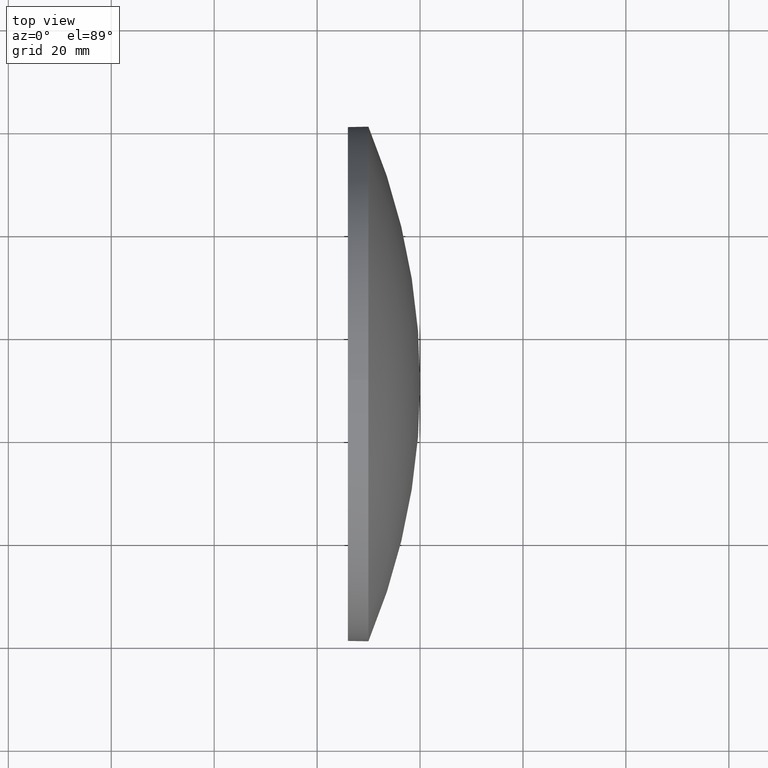
[diagram: clean part render]
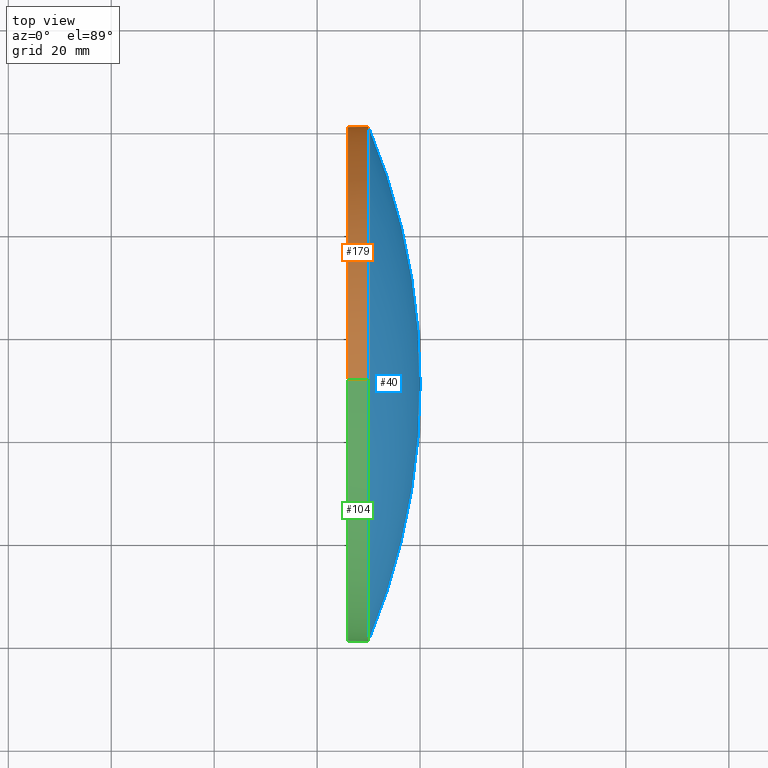
[diagram: same view with three faces highlighted in distinct colors, each labeled with its STEP entity id]
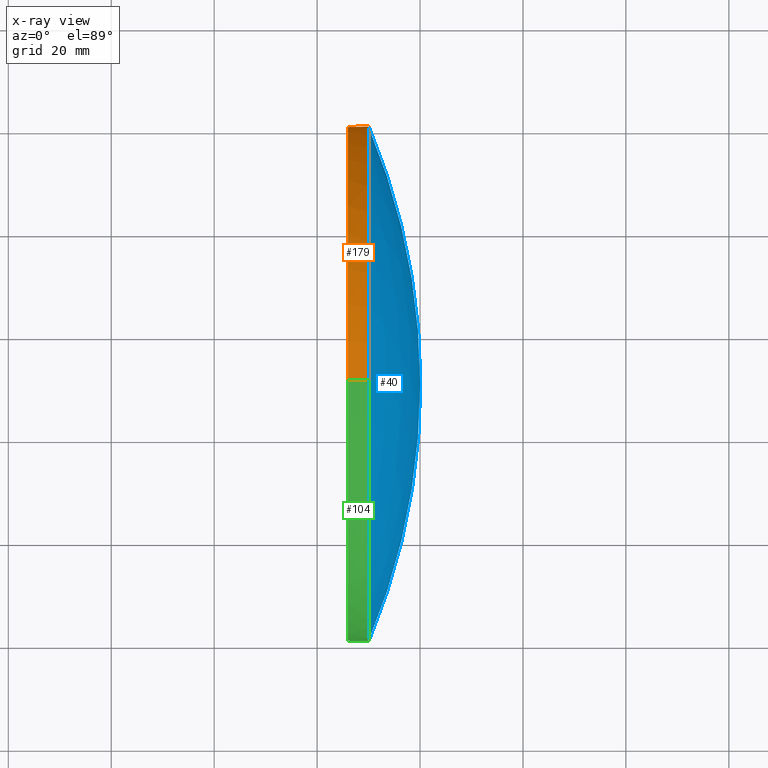
[diagram: x-ray of the same camera — body ghosted, the three highlighted faces saturated]
A machine part, top view with three faces highlighted in distinct colors.
The next image is the same camera in x-ray (body ghosted, the three faces saturated) — at least one of them is partly hidden behind the body in this view.
Their STEP definitions:

[orange] entity #179 — the highlighted cylindrical surface (partial cylindrical patch) has radius 50 mm, axis along (-1, -0, -0).
#4 = DIRECTION ( 'NONE',  ( -1.000000000000000000, -0.0000000000000000000, -0.0000000000000000000 ) ) ;
#6 = CARTESIAN_POINT ( 'NONE',  ( 229.9713472661685500, 130.4671098528244200, -50.00000000000001400 ) ) ;
#8 = ORIENTED_EDGE ( 'NONE', *, *, #70, .T. ) ;
#10 = ORIENTED_EDGE ( 'NONE', *, *, #143, .F. ) ;
#18 = DIRECTION ( 'NONE',  ( 0.0000000000000000000, 0.0000000000000000000, 1.000000000000000000 ) ) ;
#20 = CARTESIAN_POINT ( 'NONE',  ( 217.9945825323866300, 130.4671098528244200, 0.0000000000000000000 ) ) ;
#21 = EDGE_CURVE ( 'NONE', #167, #56, #175, .T. ) ;
#26 = CIRCLE ( 'NONE', #75, 50.00000000000001400 ) ;
#27 = VERTEX_POINT ( 'NONE', #6 ) ;
#28 = CARTESIAN_POINT ( 'NONE',  ( 225.9713472661685500, 130.4671098528244200, 50.00000000000001400 ) ) ;
#30 = DIRECTION ( 'NONE',  ( -1.000000000000000000, -0.0000000000000000000, -0.0000000000000000000 ) ) ;
#31 = CIRCLE ( 'NONE', #135, 50.00000000000001400 ) ;
#33 = DIRECTION ( 'NONE',  ( -1.000000000000000000, -0.0000000000000000000, -0.0000000000000000000 ) ) ;
#35 = AXIS2_PLACEMENT_3D ( 'NONE', #20, #111, #184 ) ;
#36 = VERTEX_POINT ( 'NONE', #43 ) ;
#43 = CARTESIAN_POINT ( 'NONE',  ( 229.9713472661685200, 180.4671098528244500, 0.0000000000000000000 ) ) ;
#48 = ORIENTED_EDGE ( 'NONE', *, *, #114, .T. ) ;
#52 = LINE ( 'NONE', #88, #170 ) ;
#56 = VERTEX_POINT ( 'NONE', #28 ) ;
#58 = FACE_OUTER_BOUND ( 'NONE', #134, .T. ) ;
#61 = CARTESIAN_POINT ( 'NONE',  ( 229.9713472661685500, 130.4671098528244200, 0.0000000000000000000 ) ) ;
#63 = ORIENTED_EDGE ( 'NONE', *, *, #21, .F. ) ;
#68 = AXIS2_PLACEMENT_3D ( 'NONE', #77, #92, #120 ) ;
#70 = EDGE_CURVE ( 'NONE', #27, #74, #52, .T. ) ;
#74 = VERTEX_POINT ( 'NONE', #148 ) ;
#75 = AXIS2_PLACEMENT_3D ( 'NONE', #93, #4, #123 ) ;
#77 = CARTESIAN_POINT ( 'NONE',  ( 229.9713472661685500, 130.4671098528244200, 0.0000000000000000000 ) ) ;
#88 = CARTESIAN_POINT ( 'NONE',  ( 217.9945825323866300, 130.4671098528244200, -50.00000000000001400 ) ) ;
#92 = DIRECTION ( 'NONE',  ( -1.000000000000000000, -0.0000000000000000000, -0.0000000000000000000 ) ) ;
#93 = CARTESIAN_POINT ( 'NONE',  ( 225.9713472661685500, 130.4671098528244200, 0.0000000000000000000 ) ) ;
#99 = CYLINDRICAL_SURFACE ( 'NONE', #35, 50.00000000000001400 ) ;
#111 = DIRECTION ( 'NONE',  ( -1.000000000000000000, -0.0000000000000000000, -0.0000000000000000000 ) ) ;
#114 = EDGE_CURVE ( 'NONE', #167, #36, #127, .T. ) ;
#119 = DIRECTION ( 'NONE',  ( -1.000000000000000000, -0.0000000000000000000, -0.0000000000000000000 ) ) ;
#120 = DIRECTION ( 'NONE',  ( 0.0000000000000000000, 0.0000000000000000000, 1.000000000000000000 ) ) ;
#123 = DIRECTION ( 'NONE',  ( 0.0000000000000000000, 0.0000000000000000000, 1.000000000000000000 ) ) ;
#127 = CIRCLE ( 'NONE', #68, 50.00000000000001400 ) ;
#131 = EDGE_CURVE ( 'NONE', #36, #27, #31, .T. ) ;
#134 = EDGE_LOOP ( 'NONE', ( #171, #8, #10, #63, #48 ) ) ;
#135 = AXIS2_PLACEMENT_3D ( 'NONE', #61, #33, #18 ) ;
#143 = EDGE_CURVE ( 'NONE', #56, #74, #26, .T. ) ;
#147 = VECTOR ( 'NONE', #30, 1000.000000000000000 ) ;
#148 = CARTESIAN_POINT ( 'NONE',  ( 225.9713472661685500, 130.4671098528244200, -50.00000000000001400 ) ) ;
#156 = CARTESIAN_POINT ( 'NONE',  ( 229.9713472661685500, 130.4671098528244200, 50.00000000000001400 ) ) ;
#166 = CARTESIAN_POINT ( 'NONE',  ( 217.9945825323866300, 130.4671098528244200, 50.00000000000001400 ) ) ;
#167 = VERTEX_POINT ( 'NONE', #156 ) ;
#170 = VECTOR ( 'NONE', #119, 1000.000000000000000 ) ;
#171 = ORIENTED_EDGE ( 'NONE', *, *, #131, .T. ) ;
#175 = LINE ( 'NONE', #166, #147 ) ;
#179 = ADVANCED_FACE ( 'NONE', ( #58 ), #99, .T. ) ;
#184 = DIRECTION ( 'NONE',  ( 0.0000000000000000000, 0.0000000000000000000, 1.000000000000000000 ) ) ;

[blue] entity #40 — the highlighted spherical surface has radius 129.403 mm.
#2 = DIRECTION ( 'NONE',  ( -1.000000000000000000, -0.0000000000000000000, -0.0000000000000000000 ) ) ;
#16 = DIRECTION ( 'NONE',  ( 0.0000000000000000000, 1.000000000000000000, 0.0000000000000000000 ) ) ;
#17 = DIRECTION ( 'NONE',  ( 0.0000000000000000000, 1.224646799147353200E-016, -1.000000000000000000 ) ) ;
#19 = FACE_OUTER_BOUND ( 'NONE', #176, .T. ) ;
#36 = VERTEX_POINT ( 'NONE', #43 ) ;
#38 = EDGE_CURVE ( 'NONE', #136, #36, #101, .T. ) ;
#40 = ADVANCED_FACE ( 'NONE', ( #19 ), #115, .T. ) ;
#43 = CARTESIAN_POINT ( 'NONE',  ( 229.9713472661685200, 180.4671098528244500, 0.0000000000000000000 ) ) ;
#44 = CARTESIAN_POINT ( 'NONE',  ( 240.0213472661685900, 130.4671098528244200, 0.0000000000000000000 ) ) ;
#45 = VERTEX_POINT ( 'NONE', #165 ) ;
#50 = ORIENTED_EDGE ( 'NONE', *, *, #161, .F. ) ;
#59 = CARTESIAN_POINT ( 'NONE',  ( 110.6182378134324400, 130.4671098528244200, 0.0000000000000000000 ) ) ;
#68 = AXIS2_PLACEMENT_3D ( 'NONE', #77, #92, #120 ) ;
#77 = CARTESIAN_POINT ( 'NONE',  ( 229.9713472661685500, 130.4671098528244200, 0.0000000000000000000 ) ) ;
#78 = CIRCLE ( 'NONE', #118, 129.4031094527361200 ) ;
#84 = ORIENTED_EDGE ( 'NONE', *, *, #114, .F. ) ;
#92 = DIRECTION ( 'NONE',  ( -1.000000000000000000, -0.0000000000000000000, -0.0000000000000000000 ) ) ;
#94 = CARTESIAN_POINT ( 'NONE',  ( 229.9713472661685500, 130.4671098528244200, 0.0000000000000000000 ) ) ;
#97 = DIRECTION ( 'NONE',  ( 0.0000000000000000000, 1.000000000000000000, 1.224646799147353500E-016 ) ) ;
#98 = AXIS2_PLACEMENT_3D ( 'NONE', #59, #150, #106 ) ;
#101 = CIRCLE ( 'NONE', #98, 129.4031094527361500 ) ;
#106 = DIRECTION ( 'NONE',  ( 1.000000000000000000, 0.0000000000000000000, 0.0000000000000000000 ) ) ;
#113 = CARTESIAN_POINT ( 'NONE',  ( 110.6182378134324400, 130.4671098528244200, 0.0000000000000000000 ) ) ;
#114 = EDGE_CURVE ( 'NONE', #167, #36, #127, .T. ) ;
#115 = SPHERICAL_SURFACE ( 'NONE', #129, 129.4031094527361500 ) ;
#118 = AXIS2_PLACEMENT_3D ( 'NONE', #113, #17, #97 ) ;
#120 = DIRECTION ( 'NONE',  ( 0.0000000000000000000, 0.0000000000000000000, 1.000000000000000000 ) ) ;
#127 = CIRCLE ( 'NONE', #68, 50.00000000000001400 ) ;
#128 = ORIENTED_EDGE ( 'NONE', *, *, #38, .T. ) ;
#129 = AXIS2_PLACEMENT_3D ( 'NONE', #162, #152, #16 ) ;
#136 = VERTEX_POINT ( 'NONE', #44 ) ;
#150 = DIRECTION ( 'NONE',  ( -0.0000000000000000000, 0.0000000000000000000, 1.000000000000000000 ) ) ;
#152 = DIRECTION ( 'NONE',  ( -0.0000000000000000000, 0.0000000000000000000, -1.000000000000000000 ) ) ;
#156 = CARTESIAN_POINT ( 'NONE',  ( 229.9713472661685500, 130.4671098528244200, 50.00000000000001400 ) ) ;
#159 = EDGE_CURVE ( 'NONE', #136, #45, #78, .T. ) ;
#160 = ORIENTED_EDGE ( 'NONE', *, *, #159, .F. ) ;
#161 = EDGE_CURVE ( 'NONE', #45, #167, #174, .T. ) ;
#162 = CARTESIAN_POINT ( 'NONE',  ( 110.6182378134324400, 130.4671098528244200, 0.0000000000000000000 ) ) ;
#165 = CARTESIAN_POINT ( 'NONE',  ( 229.9713472661685200, 80.46710985282439300, -6.123233995736770000E-015 ) ) ;
#167 = VERTEX_POINT ( 'NONE', #156 ) ;
#172 = AXIS2_PLACEMENT_3D ( 'NONE', #94, #2, #185 ) ;
#174 = CIRCLE ( 'NONE', #172, 50.00000000000001400 ) ;
#176 = EDGE_LOOP ( 'NONE', ( #160, #128, #84, #50 ) ) ;
#185 = DIRECTION ( 'NONE',  ( 0.0000000000000000000, 0.0000000000000000000, 1.000000000000000000 ) ) ;

[green] entity #104 — the highlighted cylindrical surface (partial cylindrical patch) has radius 50 mm, axis along (-1, -0, -0).
#2 = DIRECTION ( 'NONE',  ( -1.000000000000000000, -0.0000000000000000000, -0.0000000000000000000 ) ) ;
#3 = DIRECTION ( 'NONE',  ( -1.000000000000000000, -0.0000000000000000000, -0.0000000000000000000 ) ) ;
#6 = CARTESIAN_POINT ( 'NONE',  ( 229.9713472661685500, 130.4671098528244200, -50.00000000000001400 ) ) ;
#21 = EDGE_CURVE ( 'NONE', #167, #56, #175, .T. ) ;
#22 = ORIENTED_EDGE ( 'NONE', *, *, #161, .T. ) ;
#24 = EDGE_LOOP ( 'NONE', ( #163, #66, #22, #91, #144 ) ) ;
#27 = VERTEX_POINT ( 'NONE', #6 ) ;
#28 = CARTESIAN_POINT ( 'NONE',  ( 225.9713472661685500, 130.4671098528244200, 50.00000000000001400 ) ) ;
#30 = DIRECTION ( 'NONE',  ( -1.000000000000000000, -0.0000000000000000000, -0.0000000000000000000 ) ) ;
#39 = CIRCLE ( 'NONE', #186, 50.00000000000001400 ) ;
#41 = DIRECTION ( 'NONE',  ( -1.000000000000000000, -0.0000000000000000000, -0.0000000000000000000 ) ) ;
#45 = VERTEX_POINT ( 'NONE', #165 ) ;
#52 = LINE ( 'NONE', #88, #170 ) ;
#54 = AXIS2_PLACEMENT_3D ( 'NONE', #71, #177, #180 ) ;
#56 = VERTEX_POINT ( 'NONE', #28 ) ;
#66 = ORIENTED_EDGE ( 'NONE', *, *, #169, .T. ) ;
#67 = EDGE_CURVE ( 'NONE', #74, #56, #96, .T. ) ;
#70 = EDGE_CURVE ( 'NONE', #27, #74, #52, .T. ) ;
#71 = CARTESIAN_POINT ( 'NONE',  ( 217.9945825323866300, 130.4671098528244200, 0.0000000000000000000 ) ) ;
#72 = DIRECTION ( 'NONE',  ( 0.0000000000000000000, 0.0000000000000000000, 1.000000000000000000 ) ) ;
#74 = VERTEX_POINT ( 'NONE', #148 ) ;
#88 = CARTESIAN_POINT ( 'NONE',  ( 217.9945825323866300, 130.4671098528244200, -50.00000000000001400 ) ) ;
#91 = ORIENTED_EDGE ( 'NONE', *, *, #21, .T. ) ;
#94 = CARTESIAN_POINT ( 'NONE',  ( 229.9713472661685500, 130.4671098528244200, 0.0000000000000000000 ) ) ;
#96 = CIRCLE ( 'NONE', #107, 50.00000000000001400 ) ;
#102 = FACE_OUTER_BOUND ( 'NONE', #24, .T. ) ;
#104 = ADVANCED_FACE ( 'NONE', ( #102 ), #158, .T. ) ;
#107 = AXIS2_PLACEMENT_3D ( 'NONE', #137, #41, #72 ) ;
#119 = DIRECTION ( 'NONE',  ( -1.000000000000000000, -0.0000000000000000000, -0.0000000000000000000 ) ) ;
#122 = CARTESIAN_POINT ( 'NONE',  ( 229.9713472661685500, 130.4671098528244200, 0.0000000000000000000 ) ) ;
#137 = CARTESIAN_POINT ( 'NONE',  ( 225.9713472661685500, 130.4671098528244200, 0.0000000000000000000 ) ) ;
#144 = ORIENTED_EDGE ( 'NONE', *, *, #67, .F. ) ;
#147 = VECTOR ( 'NONE', #30, 1000.000000000000000 ) ;
#148 = CARTESIAN_POINT ( 'NONE',  ( 225.9713472661685500, 130.4671098528244200, -50.00000000000001400 ) ) ;
#153 = DIRECTION ( 'NONE',  ( 0.0000000000000000000, 0.0000000000000000000, 1.000000000000000000 ) ) ;
#156 = CARTESIAN_POINT ( 'NONE',  ( 229.9713472661685500, 130.4671098528244200, 50.00000000000001400 ) ) ;
#158 = CYLINDRICAL_SURFACE ( 'NONE', #54, 50.00000000000001400 ) ;
#161 = EDGE_CURVE ( 'NONE', #45, #167, #174, .T. ) ;
#163 = ORIENTED_EDGE ( 'NONE', *, *, #70, .F. ) ;
#165 = CARTESIAN_POINT ( 'NONE',  ( 229.9713472661685200, 80.46710985282439300, -6.123233995736770000E-015 ) ) ;
#166 = CARTESIAN_POINT ( 'NONE',  ( 217.9945825323866300, 130.4671098528244200, 50.00000000000001400 ) ) ;
#167 = VERTEX_POINT ( 'NONE', #156 ) ;
#169 = EDGE_CURVE ( 'NONE', #27, #45, #39, .T. ) ;
#170 = VECTOR ( 'NONE', #119, 1000.000000000000000 ) ;
#172 = AXIS2_PLACEMENT_3D ( 'NONE', #94, #2, #185 ) ;
#174 = CIRCLE ( 'NONE', #172, 50.00000000000001400 ) ;
#175 = LINE ( 'NONE', #166, #147 ) ;
#177 = DIRECTION ( 'NONE',  ( -1.000000000000000000, -0.0000000000000000000, -0.0000000000000000000 ) ) ;
#180 = DIRECTION ( 'NONE',  ( 0.0000000000000000000, 0.0000000000000000000, 1.000000000000000000 ) ) ;
#185 = DIRECTION ( 'NONE',  ( 0.0000000000000000000, 0.0000000000000000000, 1.000000000000000000 ) ) ;
#186 = AXIS2_PLACEMENT_3D ( 'NONE', #122, #3, #153 ) ;